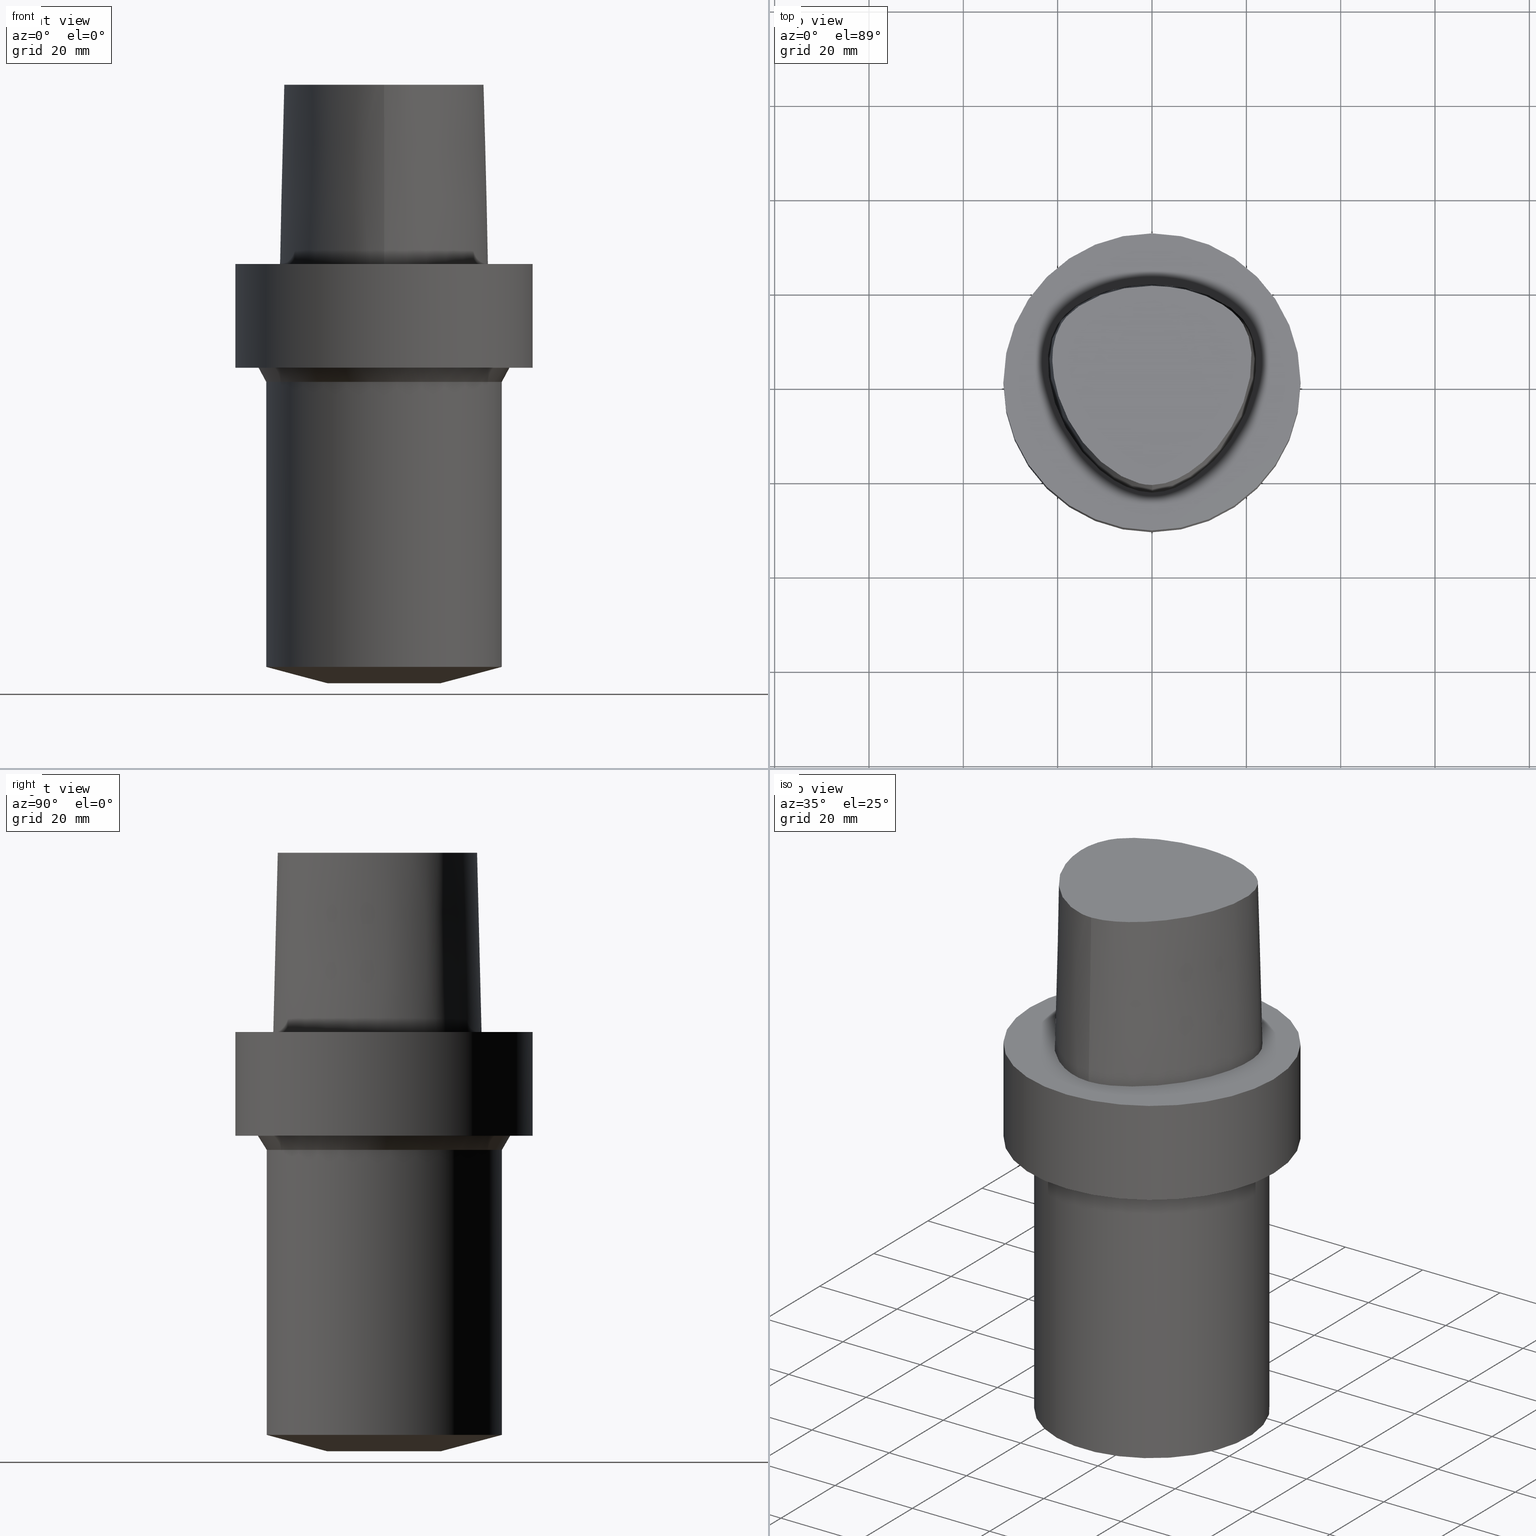
[diagram: canonical four-view strip — front | top / right | iso, engineering-drawing reading convention]
A machine part, canonical four-view strip (front | top / right | iso — engineering-drawing reading convention). The complete STEP part file that produces these views, byte-faithful:
ISO-10303-21;
HEADER;
FILE_DESCRIPTION((''),'1');
FILE_NAME('V:/01_Dxf_Field-HP\X2\FF71FF6FFF8CFF9F5916\X0\2013/BIGKAISER\X2\FF76FF80FF9BFF78FF9E63B28F095206\X0\_BKUS_201803/C6-BSL/C6-BSL.750-3.5.stp','2018-03-14T07:36:31',(''),(''),'Spatial Interop R21 SP3','Kubotek KeyCreator 2011 V10.0.2 (22737)',' ');
FILE_SCHEMA(('automotive_design'));
ENDSEC;
DATA;
#1=MECHANICAL_DESIGN_GEOMETRIC_PRESENTATION_REPRESENTATION(' ',(#10,#11,#12,#13,#14,#15,#16,#17,#18,#19,#20,#21,#22,#23,#24,#25,#26,#27,#28,#29,#30,#31,#32,#33,#34,#35),#6);
#2=PRODUCT_DEFINITION_CONTEXT('',#36,'design');
#3=APPLICATION_PROTOCOL_DEFINITION('INTERNATIONAL STANDARD','automotive_design',1994,#36);
#4=PRODUCT_CATEGORY_RELATIONSHIP('NONE','NONE',#37,#38);
#5=SHAPE_DEFINITION_REPRESENTATION(#39,#40);
#6= (GEOMETRIC_REPRESENTATION_CONTEXT(3)GLOBAL_UNCERTAINTY_ASSIGNED_CONTEXT((#43))GLOBAL_UNIT_ASSIGNED_CONTEXT((#45,#46,#47))REPRESENTATION_CONTEXT('NONE','WORKSPACE'));
#10=STYLED_ITEM('',(#49,#50),#51);
#11=STYLED_ITEM('',(#52),#53);
#12=STYLED_ITEM('',(#54,#55),#56);
#13=STYLED_ITEM('',(#57),#58);
#14=STYLED_ITEM('',(#59),#60);
#15=STYLED_ITEM('',(#61,#62),#63);
#16=STYLED_ITEM('',(#64),#65);
#17=STYLED_ITEM('',(#66,#67),#68);
#18=STYLED_ITEM('',(#69),#70);
#19=STYLED_ITEM('',(#71),#72);
#20=STYLED_ITEM('',(#73,#74),#75);
#21=STYLED_ITEM('',(#76),#77);
#22=STYLED_ITEM('',(#78,#79),#80);
#23=STYLED_ITEM('',(#81,#82),#83);
#24=STYLED_ITEM('',(#84),#85);
#25=STYLED_ITEM('',(#86),#87);
#26=STYLED_ITEM('',(#88,#89),#90);
#27=STYLED_ITEM('',(#91,#92),#93);
#28=STYLED_ITEM('',(#94),#95);
#29=STYLED_ITEM('',(#96),#97);
#30=STYLED_ITEM('',(#98),#99);
#31=STYLED_ITEM('',(#100,#101),#102);
#32=STYLED_ITEM('',(#103,#104),#105);
#33=STYLED_ITEM('',(#106),#107);
#34=STYLED_ITEM('',(#108),#109);
#35=STYLED_ITEM('',(#110,#111),#112);
#36=APPLICATION_CONTEXT(' ');
#37=PRODUCT_CATEGORY('part','NONE');
#38=PRODUCT_RELATED_PRODUCT_CATEGORY('detail',' ',(#113));
#39=PRODUCT_DEFINITION_SHAPE('NONE','NONE',#114);
#40=ADVANCED_BREP_SHAPE_REPRESENTATION('Unnamed[1]',(#102,#115),#6);
#43=UNCERTAINTY_MEASURE_WITH_UNIT(LENGTH_MEASURE(1.0E-006),#45,'','');
#45= (CONVERSION_BASED_UNIT('MILLIMETRE',#118)LENGTH_UNIT()NAMED_UNIT(#121));
#46= (NAMED_UNIT(#123)PLANE_ANGLE_UNIT()SI_UNIT($,.RADIAN.));
#47= (NAMED_UNIT(#123)SOLID_ANGLE_UNIT()SI_UNIT($,.STERADIAN.));
#49=PRESENTATION_STYLE_ASSIGNMENT((#129));
#50=PRESENTATION_STYLE_ASSIGNMENT((#130));
#51=ADVANCED_FACE('Unnamed[1]',(#131,#132),#133,.T.);
#52=PRESENTATION_STYLE_ASSIGNMENT((#134));
#53=EDGE_CURVE('Unnamed[1]',#135,#136,#137,.T.);
#54=PRESENTATION_STYLE_ASSIGNMENT((#138));
#55=PRESENTATION_STYLE_ASSIGNMENT((#139));
#56=ADVANCED_FACE('Unnamed[1]',(#140),#141,.T.);
#57=PRESENTATION_STYLE_ASSIGNMENT((#142));
#58=EDGE_CURVE('Unnamed[1]',#143,#136,#144,.T.);
#59=PRESENTATION_STYLE_ASSIGNMENT((#145));
#60=EDGE_CURVE('Unnamed[1]',#146,#146,#147,.T.);
#61=PRESENTATION_STYLE_ASSIGNMENT((#148));
#62=PRESENTATION_STYLE_ASSIGNMENT((#149));
#63=ADVANCED_FACE('Unnamed[1]',(#150,#151),#152,.T.);
#64=PRESENTATION_STYLE_ASSIGNMENT((#153));
#65=EDGE_CURVE('Unnamed[1]',#154,#154,#155,.T.);
#66=PRESENTATION_STYLE_ASSIGNMENT((#156));
#67=PRESENTATION_STYLE_ASSIGNMENT((#157));
#68=ADVANCED_FACE('Unnamed[1]',(#158,#159),#160,.T.);
#69=PRESENTATION_STYLE_ASSIGNMENT((#161));
#70=EDGE_CURVE('Unnamed[1]',#162,#135,#163,.T.);
#71=PRESENTATION_STYLE_ASSIGNMENT((#164));
#72=EDGE_CURVE('Unnamed[1]',#165,#143,#166,.T.);
#73=PRESENTATION_STYLE_ASSIGNMENT((#167));
#74=PRESENTATION_STYLE_ASSIGNMENT((#168));
#75=ADVANCED_FACE('Unnamed[1]',(#169),#170,.T.);
#76=PRESENTATION_STYLE_ASSIGNMENT((#171));
#77=EDGE_CURVE('Unnamed[1]',#172,#172,#173,.T.);
#78=PRESENTATION_STYLE_ASSIGNMENT((#174));
#79=PRESENTATION_STYLE_ASSIGNMENT((#175));
#80=ADVANCED_FACE('Unnamed[1]',(#176),#177,.T.);
#81=PRESENTATION_STYLE_ASSIGNMENT((#178));
#82=PRESENTATION_STYLE_ASSIGNMENT((#179));
#83=ADVANCED_FACE('Unnamed[1]',(#180,#181),#182,.T.);
#84=PRESENTATION_STYLE_ASSIGNMENT((#183));
#85=EDGE_CURVE('Unnamed[1]',#165,#135,#184,.T.);
#86=PRESENTATION_STYLE_ASSIGNMENT((#185));
#87=EDGE_CURVE('Unnamed[1]',#186,#186,#187,.T.);
#88=PRESENTATION_STYLE_ASSIGNMENT((#188));
#89=PRESENTATION_STYLE_ASSIGNMENT((#189));
#90=ADVANCED_FACE('Unnamed[1]',(#190,#191),#192,.T.);
#91=PRESENTATION_STYLE_ASSIGNMENT((#193));
#92=PRESENTATION_STYLE_ASSIGNMENT((#194));
#93=ADVANCED_FACE('Unnamed[1]',(#195),#196,.T.);
#94=PRESENTATION_STYLE_ASSIGNMENT((#197));
#95=EDGE_CURVE('Unnamed[1]',#143,#162,#198,.T.);
#96=PRESENTATION_STYLE_ASSIGNMENT((#199));
#97=EDGE_CURVE('Unnamed[1]',#200,#200,#201,.T.);
#98=PRESENTATION_STYLE_ASSIGNMENT((#202));
#99=EDGE_CURVE('Unnamed[1]',#143,#165,#203,.T.);
#100=PRESENTATION_STYLE_ASSIGNMENT((#204));
#101=PRESENTATION_STYLE_ASSIGNMENT((#205));
#102=MANIFOLD_SOLID_BREP('Unnamed[1]',#206);
#103=PRESENTATION_STYLE_ASSIGNMENT((#207));
#104=PRESENTATION_STYLE_ASSIGNMENT((#208));
#105=ADVANCED_FACE('Unnamed[1]',(#209,#210),#211,.T.);
#106=PRESENTATION_STYLE_ASSIGNMENT((#212));
#107=EDGE_CURVE('Unnamed[1]',#213,#213,#214,.T.);
#108=PRESENTATION_STYLE_ASSIGNMENT((#215));
#109=EDGE_CURVE('Unnamed[1]',#136,#162,#216,.T.);
#110=PRESENTATION_STYLE_ASSIGNMENT((#217));
#111=PRESENTATION_STYLE_ASSIGNMENT((#218));
#112=ADVANCED_FACE('Unnamed[1]',(#219),#220,.T.);
#113=PRODUCT('Unnamed[1]','Unnamed[1]','PART-Unnamed[1]-DESC',(#221));
#114=PRODUCT_DEFINITION('NONE','NONE',#222,#2);
#115=AXIS2_PLACEMENT_3D('',#223,#224,#225);
#118=LENGTH_MEASURE_WITH_UNIT(LENGTH_MEASURE(1.0),#226);
#121=DIMENSIONAL_EXPONENTS(1.0,0.0,0.0,0.0,0.0,0.0,0.0);
#123=DIMENSIONAL_EXPONENTS(0.0,0.0,0.0,0.0,0.0,0.0,0.0);
#129=SURFACE_STYLE_USAGE(.BOTH.,#227);
#130=CURVE_STYLE('',#228,POSITIVE_LENGTH_MEASURE(1000.0),#229);
#131=FACE_BOUND('',#230,.T.);
#132=FACE_BOUND('',#231,.T.);
#133=CONICAL_SURFACE('',#232,18.5000000000905,1.30899693898932);
#134=CURVE_STYLE('',#233,POSITIVE_LENGTH_MEASURE(1000.0),#234);
#135=VERTEX_POINT('',#235);
#136=VERTEX_POINT('',#236);
#137=B_SPLINE_CURVE_WITH_KNOTS('',3,(#237,#238,#239,#240,#241,#242,#243,#244,#245,#246,#247,#248,#249,#250,#251,#252,#253,#254),.UNSPECIFIED.,.F.,.F.,(4,1,1,1,1,1,1,1,1,2,1,1,1,1,4),(-6.6151339308743,-6.20168806019465,-5.78824218951501,-5.37479631883537,-4.96135044815572,-4.13445870679644,-3.30756696543715,-2.89412109475751,-2.48067522407786,-2.06722935339822,-1.65378348271857,-1.24033761203893,-0.826891741359287,-0.413445870679644,0.0),.UNSPECIFIED.);
#138=SURFACE_STYLE_USAGE(.BOTH.,#255);
#139=CURVE_STYLE('',#256,POSITIVE_LENGTH_MEASURE(1000.0),#257);
#140=FACE_OUTER_BOUND('',#258,.T.);
#141=B_SPLINE_SURFACE_WITH_KNOTS('',3,3,((#259,#260,#261,#262),(#263,#264,#265,#266),(#267,#268,#269,#270),(#271,#272,#273,#274),(#275,#276,#277,#278),(#279,#280,#281,#282),(#283,#284,#285,#286),(#287,#288,#289,#290),(#291,#292,#293,#294),(#295,#296,#297,#298),(#299,#300,#301,#302),(#303,#304,#305,#306),(#307,#308,#309,#310),(#311,#312,#313,#314),(#315,#316,#317,#318),(#319,#320,#321,#322),(#323,#324,#325,#326),(#327,#328,#329,#330)),.UNSPECIFIED.,.F.,.F.,.F.,(4,1,1,1,1,1,1,1,1,2,1,1,1,1,4),(4,4),(-6.6151339308743,-6.20168806019465,-5.78824218951501,-5.37479631883537,-4.96135044815572,-4.13445870679644,-3.30756696543715,-2.89412109475751,-2.48067522407786,-2.06722935339822,-1.65378348271857,-1.24033761203893,-0.826891741359287,-0.413445870679644,0.0),(-3.8,0.0),.UNSPECIFIED.);
#142=CURVE_STYLE('',#331,POSITIVE_LENGTH_MEASURE(1000.0),#332);
#143=VERTEX_POINT('',#333);
#144=LINE('',#334,#335);
#145=CURVE_STYLE('',#336,POSITIVE_LENGTH_MEASURE(1000.0),#337);
#146=VERTEX_POINT('',#338);
#147=CIRCLE('',#339,24.9999999998985);
#148=SURFACE_STYLE_USAGE(.BOTH.,#340);
#149=CURVE_STYLE('',#341,POSITIVE_LENGTH_MEASURE(1000.0),#342);
#150=FACE_BOUND('',#343,.T.);
#151=FACE_OUTER_BOUND('',#344,.T.);
#152=PLANE('',#345);
#153=CURVE_STYLE('',#346,POSITIVE_LENGTH_MEASURE(1000.0),#347);
#154=VERTEX_POINT('',#348);
#155=CIRCLE('',#349,11.9999999999596);
#156=SURFACE_STYLE_USAGE(.BOTH.,#350);
#157=CURVE_STYLE('',#351,POSITIVE_LENGTH_MEASURE(1000.0),#352);
#158=FACE_BOUND('',#353,.T.);
#159=FACE_BOUND('',#354,.T.);
#160=CONICAL_SURFACE('',#355,25.8660254036023,0.523598775591873);
#161=CURVE_STYLE('',#356,POSITIVE_LENGTH_MEASURE(1000.0),#357);
#162=VERTEX_POINT('',#358);
#163=B_SPLINE_CURVE_WITH_KNOTS('',3,(#359,#360,#361,#362,#363,#364,#365,#366,#367,#368,#369,#370,#371,#372,#373,#374,#375),.UNSPECIFIED.,.F.,.F.,(4,1,1,1,1,1,1,1,1,1,1,1,1,1,4),(-13.2302678617486,-12.816821991069,-12.4033761203893,-11.9899302497097,-11.57648437903,-11.1630385083504,-10.9563155730106,-10.7495926376707,-10.3361467669911,-9.92270089631145,-9.09580915495216,-8.26891741359287,-7.44202567223358,-7.02857980155394,-6.6151339308743),.UNSPECIFIED.);
#164=CURVE_STYLE('',#376,POSITIVE_LENGTH_MEASURE(1000.0),#377);
#165=VERTEX_POINT('',#378);
#166=B_SPLINE_CURVE_WITH_KNOTS('',3,(#379,#380,#381,#382,#383,#384,#385,#386,#387,#388,#389,#390,#391,#392,#393,#394),.UNSPECIFIED.,.F.,.F.,(4,1,1,1,1,1,1,1,1,1,1,1,1,4),(6.61513393087476,6.99917207152274,7.48193246986995,7.96289324787093,8.45540287038584,9.10291653679981,9.67129810936083,10.1618749681153,10.6358867802489,11.1080734988593,11.6043706019633,12.09451993853,12.6985979284494,13.2302678617486),.UNSPECIFIED.);
#167=SURFACE_STYLE_USAGE(.BOTH.,#395);
#168=CURVE_STYLE('',#396,POSITIVE_LENGTH_MEASURE(1000.0),#397);
#169=FACE_OUTER_BOUND('',#398,.T.);
#170=PLANE('',#399);
#171=CURVE_STYLE('',#400,POSITIVE_LENGTH_MEASURE(1000.0),#401);
#172=VERTEX_POINT('',#402);
#173=CIRCLE('',#403,26.7320508073061);
#174=SURFACE_STYLE_USAGE(.BOTH.,#404);
#175=CURVE_STYLE('',#405,POSITIVE_LENGTH_MEASURE(1000.0),#406);
#176=FACE_OUTER_BOUND('',#407,.T.);
#177=B_SPLINE_SURFACE_WITH_KNOTS('',3,3,((#408,#409,#410,#411),(#412,#413,#414,#415),(#416,#417,#418,#419),(#420,#421,#422,#423),(#424,#425,#426,#427),(#428,#429,#430,#431),(#432,#433,#434,#435),(#436,#437,#438,#439),(#440,#441,#442,#443),(#444,#445,#446,#447),(#448,#449,#450,#451),(#452,#453,#454,#455),(#456,#457,#458,#459),(#460,#461,#462,#463),(#464,#465,#466,#467),(#468,#469,#470,#471),(#472,#473,#474,#475)),.UNSPECIFIED.,.F.,.F.,.F.,(4,1,1,1,1,1,1,1,1,1,1,1,1,1,4),(4,4),(-13.2302678617486,-12.816821991069,-12.4033761203893,-11.9899302497097,-11.57648437903,-11.1630385083504,-10.9563155730106,-10.7495926376707,-10.3361467669911,-9.92270089631145,-9.09580915495216,-8.26891741359287,-7.44202567223358,-7.02857980155394,-6.6151339308743),(-3.8,0.0),.UNSPECIFIED.);
#178=SURFACE_STYLE_USAGE(.BOTH.,#476);
#179=CURVE_STYLE('',#477,POSITIVE_LENGTH_MEASURE(1000.0),#478);
#180=FACE_BOUND('',#479,.T.);
#181=FACE_BOUND('',#480,.T.);
#182=CYLINDRICAL_SURFACE('',#481,25.00000000006);
#183=CURVE_STYLE('',#482,POSITIVE_LENGTH_MEASURE(1000.0),#483);
#184=LINE('',#484,#485);
#185=CURVE_STYLE('',#486,POSITIVE_LENGTH_MEASURE(1000.0),#487);
#186=VERTEX_POINT('',#488);
#187=CIRCLE('',#489,25.0000000002215);
#188=SURFACE_STYLE_USAGE(.BOTH.,#490);
#189=CURVE_STYLE('',#491,POSITIVE_LENGTH_MEASURE(1000.0),#492);
#190=FACE_BOUND('',#493,.T.);
#191=FACE_OUTER_BOUND('',#494,.T.);
#192=PLANE('',#495);
#193=SURFACE_STYLE_USAGE(.BOTH.,#496);
#194=CURVE_STYLE('',#497,POSITIVE_LENGTH_MEASURE(1000.0),#498);
#195=FACE_OUTER_BOUND('',#499,.T.);
#196=CONICAL_SURFACE('',#500,1.0,0.0249931148600041);
#197=CURVE_STYLE('',#501,POSITIVE_LENGTH_MEASURE(1000.0),#502);
#198=LINE('',#503,#504);
#199=CURVE_STYLE('',#505,POSITIVE_LENGTH_MEASURE(1000.0),#506);
#200=VERTEX_POINT('',#507);
#201=CIRCLE('',#508,31.5);
#202=CURVE_STYLE('',#509,POSITIVE_LENGTH_MEASURE(1000.0),#510);
#203=B_SPLINE_CURVE_WITH_KNOTS('',3,(#511,#512,#513,#514,#515,#516,#517,#518,#519,#520,#521,#522,#523,#524,#525,#526),.UNSPECIFIED.,.F.,.F.,(4,1,1,1,1,1,1,1,1,1,1,1,1,4),(0.0,0.447924670568964,0.9388024242536,1.50591409090711,2.07314340012323,2.72424957442464,3.2253501842849,3.80982102049476,4.34867996267067,4.85900173381144,5.37972031856977,6.03459825488646,6.61113557741484,6.61513393087395),.UNSPECIFIED.);
#204=SURFACE_STYLE_USAGE(.BOTH.,#527);
#205=CURVE_STYLE('',#528,POSITIVE_LENGTH_MEASURE(1000.0),#529);
#206=CLOSED_SHELL('',(#80,#56,#93,#112,#90,#105,#63,#68,#83,#51,#75));
#207=SURFACE_STYLE_USAGE(.BOTH.,#530);
#208=CURVE_STYLE('',#531,POSITIVE_LENGTH_MEASURE(1000.0),#532);
#209=FACE_BOUND('',#533,.T.);
#210=FACE_BOUND('',#534,.T.);
#211=CYLINDRICAL_SURFACE('',#535,31.5);
#212=CURVE_STYLE('',#536,POSITIVE_LENGTH_MEASURE(1000.0),#537);
#213=VERTEX_POINT('',#538);
#214=CIRCLE('',#539,31.5);
#215=CURVE_STYLE('',#540,POSITIVE_LENGTH_MEASURE(1000.0),#541);
#216=CIRCLE('',#542,0.949936168436318);
#217=SURFACE_STYLE_USAGE(.BOTH.,#543);
#218=CURVE_STYLE('',#544,POSITIVE_LENGTH_MEASURE(1000.0),#545);
#219=FACE_OUTER_BOUND('',#546,.T.);
#220=PLANE('',#547);
#221=PRODUCT_CONTEXT('',#36,'mechanical');
#222=PRODUCT_DEFINITION_FORMATION_WITH_SPECIFIED_SOURCE(' ','NONE',#113,.NOT_KNOWN.);
#223=CARTESIAN_POINT('',(0.0,0.0,0.0));
#224=DIRECTION('',(0.0,0.0,1.0));
#225=DIRECTION('',(1.0,0.0,0.0));
#226= (NAMED_UNIT(#121)LENGTH_UNIT()SI_UNIT(.MILLI.,.METRE.));
#227=SURFACE_SIDE_STYLE('',(#549));
#228=DRAUGHTING_PRE_DEFINED_CURVE_FONT('continuous');
#229=COLOUR_RGB('',0.0,1.0,0.0);
#230=EDGE_LOOP('',(#550));
#231=EDGE_LOOP('',(#551));
#232=AXIS2_PLACEMENT_3D('',#552,#553,#554);
#233=DRAUGHTING_PRE_DEFINED_CURVE_FONT('continuous');
#234=COLOUR_RGB('',0.0,1.0,0.0);
#235=CARTESIAN_POINT('',(0.04359356758149,-23.4691235068931,7.78075697532443E-032));
#236=CARTESIAN_POINT('',(-0.045171994691285,20.6766009553285,1.6755590516169E-031));
#237=CARTESIAN_POINT('',(0.04359356758149,-23.4691235068931,7.78075697532443E-032));
#238=CARTESIAN_POINT('',(-1.4714994713963,-23.4767895315797,2.46519032881566E-032));
#239=CARTESIAN_POINT('',(-4.43923476371401,-22.821149804767,-4.93038065763132E-032));
#240=CARTESIAN_POINT('',(-8.35043230079961,-20.8000751253325,-9.86076131526265E-032));
#241=CARTESIAN_POINT('',(-11.744900222602,-18.1556117874078,-1.97215226305253E-031));
#242=CARTESIAN_POINT('',(-15.6989602501314,-14.0406306929147,-1.97215226305253E-031));
#243=CARTESIAN_POINT('',(-19.5352875070682,-8.00624990770787,1.97215226305253E-031));
#244=CARTESIAN_POINT('',(-21.7205626190491,-1.16081708945282,0.0));
#245=CARTESIAN_POINT('',(-22.2486616783342,4.54965558738736,0.0));
#246=CARTESIAN_POINT('',(-21.6646421256468,9.00229539124618,0.0));
#247=CARTESIAN_POINT('',(-20.3945635471922,11.7780544971003,0.0));
#248=CARTESIAN_POINT('',(-18.5925528034471,14.1980602922581,0.0));
#249=CARTESIAN_POINT('',(-16.3226584122258,16.1777748720707,0.0));
#250=CARTESIAN_POINT('',(-12.5076407874579,18.2524201541303,9.86076131526265E-032));
#251=CARTESIAN_POINT('',(-8.46776192107786,19.679114377952,9.86076131526265E-032));
#252=CARTESIAN_POINT('',(-4.23043497193604,20.487781597334,1.97215226305253E-031));
#253=CARTESIAN_POINT('',(-1.42313094248379,20.6127745766442,1.10933564796705E-031));
#254=CARTESIAN_POINT('',(-0.045171994691285,20.6766009553285,1.6755590516169E-031));
#255=SURFACE_SIDE_STYLE('',(#555));
#256=DRAUGHTING_PRE_DEFINED_CURVE_FONT('continuous');
#257=COLOUR_RGB('',0.0,1.0,0.0);
#258=EDGE_LOOP('',(#556,#557,#558,#559));
#259=CARTESIAN_POINT('',(0.038736923393866,-22.5191997536361,38.0));
#260=CARTESIAN_POINT('',(0.04035580478973,-22.8358410047159,25.3333333333066));
#261=CARTESIAN_POINT('',(0.041974686185626,-23.1524822558133,12.6666666666934));
#262=CARTESIAN_POINT('',(0.04359356758149,-23.4691235068931,7.78075697532443E-032));
#263=CARTESIAN_POINT('',(-1.33786123484754,-22.5261650259856,38.0));
#264=CARTESIAN_POINT('',(-1.38240731367927,-22.8430399310626,25.3333333333066));
#265=CARTESIAN_POINT('',(-1.42695339249092,-23.1599147815484,12.6666666666934));
#266=CARTESIAN_POINT('',(-1.4714994713963,-23.4767895315797,2.46519032881566E-032));
#267=CARTESIAN_POINT('',(-4.08909358431842,-21.9268839879558,38.0));
#268=CARTESIAN_POINT('',(-4.20580731135515,-22.2249725500078,25.3333333333066));
#269=CARTESIAN_POINT('',(-4.32252104640446,-22.5230611651922,12.6666666666934));
#270=CARTESIAN_POINT('',(-4.43923476371401,-22.821149804767,-4.93038065763132E-032));
#271=CARTESIAN_POINT('',(-7.8333083619947,-19.9973514861616,38.0));
#272=CARTESIAN_POINT('',(-8.00568301809614,-20.2649260859405,25.3333333333066));
#273=CARTESIAN_POINT('',(-8.1780576640789,-20.532500564315,12.6666666666934));
#274=CARTESIAN_POINT('',(-8.35043230079961,-20.8000751253325,-9.86076131526265E-032));
#275=CARTESIAN_POINT('',(-11.1035071147626,-17.450554957873,38.0));
#276=CARTESIAN_POINT('',(-11.3173048160562,-17.6855739222454,25.3333333333066));
#277=CARTESIAN_POINT('',(-11.5311025116181,-17.9205928617968,12.6666666666934));
#278=CARTESIAN_POINT('',(-11.744900222602,-18.1556117874078,-1.97215226305253E-031));
#279=CARTESIAN_POINT('',(-14.9379535189057,-13.461132049697,38.0));
#280=CARTESIAN_POINT('',(-15.191622410671,-13.6542981711372,25.3333333333066));
#281=CARTESIAN_POINT('',(-15.4452913389853,-13.8474645327131,12.6666666666934));
#282=CARTESIAN_POINT('',(-15.6989602501314,-14.0406306929147,-1.97215226305253E-031));
#283=CARTESIAN_POINT('',(-18.6681263017223,-7.59391757463204,38.0));
#284=CARTESIAN_POINT('',(-18.9571800800711,-7.73136168081928,25.3333333333066));
#285=CARTESIAN_POINT('',(-19.2462337287194,-7.86880572399774,12.6666666666934));
#286=CARTESIAN_POINT('',(-19.5352875070682,-8.00624990770787,1.97215226305253E-031));
#287=CARTESIAN_POINT('',(-20.7857899858339,-0.952862819790525,38.0));
#288=CARTESIAN_POINT('',(-21.0973808305434,-1.02218087467418,25.3333333333066));
#289=CARTESIAN_POINT('',(-21.408971677436,-1.09149899580772,12.6666666666934));
#290=CARTESIAN_POINT('',(-21.7205626190491,-1.16081708945282,0.0));
#291=CARTESIAN_POINT('',(-21.2911760556836,4.5469215763113,38.0));
#292=CARTESIAN_POINT('',(-21.610337904926,4.54783292082248,25.3333333333066));
#293=CARTESIAN_POINT('',(-21.9294998290918,4.54874426225691,12.6666666666934));
#294=CARTESIAN_POINT('',(-22.2486616783342,4.54965558738736,0.0));
#295=CARTESIAN_POINT('',(-20.7345309521958,8.74909381391006,38.0));
#296=CARTESIAN_POINT('',(-21.0445680426217,8.83349432450556,25.3333333333066));
#297=CARTESIAN_POINT('',(-21.3546050933631,8.91789488065068,12.6666666666934));
#298=CARTESIAN_POINT('',(-21.6646421256468,9.00229539124618,0.0));
#299=CARTESIAN_POINT('',(-19.5531512296439,11.3174844040833,38.0));
#300=CARTESIAN_POINT('',(-19.8336219699984,11.4710077674213,25.3333333333066));
#301=CARTESIAN_POINT('',(-20.1140927680763,11.6245311337623,12.6666666666934));
#302=CARTESIAN_POINT('',(-20.3945635471922,11.7780544971003,0.0));
#303=CARTESIAN_POINT('',(-17.9100913688793,13.524027510437,38.0));
#304=CARTESIAN_POINT('',(-18.1375785458768,13.7487051053655,25.3333333333066));
#305=CARTESIAN_POINT('',(-18.365065665211,13.9733826973296,12.6666666666934));
#306=CARTESIAN_POINT('',(-18.5925528034471,14.1980602922581,0.0));
#307=CARTESIAN_POINT('',(-15.7996349656398,15.3762170634413,38.0));
#308=CARTESIAN_POINT('',(-15.9739761051783,15.6434029846179,25.3333333333066));
#309=CARTESIAN_POINT('',(-16.1483172726872,15.9105889315134,12.6666666666934));
#310=CARTESIAN_POINT('',(-16.3226584122258,16.1777748720707,0.0));
#311=CARTESIAN_POINT('',(-12.1175640002064,17.3825162484012,38.0));
#312=CARTESIAN_POINT('',(-12.2475895903055,17.6724842099619,25.3333333333066));
#313=CARTESIAN_POINT('',(-12.3776152070492,17.9624521925696,12.6666666666934));
#314=CARTESIAN_POINT('',(-12.5076407874579,18.2524201541303,9.86076131526265E-032));
#315=CARTESIAN_POINT('',(-8.21761151654222,18.7588585989994,38.0));
#316=CARTESIAN_POINT('',(-8.30099497910627,19.0656105427881,25.3333333333066));
#317=CARTESIAN_POINT('',(-8.38437843913309,19.3723624535439,12.6666666666934));
#318=CARTESIAN_POINT('',(-8.46776192107786,19.679114377952,9.86076131526265E-032));
#319=CARTESIAN_POINT('',(-4.13466093881225,19.5396850837055,38.0));
#320=CARTESIAN_POINT('',(-4.16658562115465,19.8557172636973,25.3333333333066));
#321=CARTESIAN_POINT('',(-4.19851029939059,20.1717494367229,12.6666666666934));
#322=CARTESIAN_POINT('',(-4.23043497193604,20.487781597334,1.97215226305253E-031));
#323=CARTESIAN_POINT('',(-1.37917220403684,19.6638560588908,38.0));
#324=CARTESIAN_POINT('',(-1.39382511685176,19.98016223565,25.3333333333066));
#325=CARTESIAN_POINT('',(-1.40847802945569,20.296468399885,12.6666666666934));
#326=CARTESIAN_POINT('',(-1.42313094248379,20.6127745766442,1.10933564796705E-031));
#327=CARTESIAN_POINT('',(-0.001218547003662,19.7276821925089,38.0));
#328=CARTESIAN_POINT('',(-0.015869696232855,20.043988446791,25.3333333333066));
#329=CARTESIAN_POINT('',(-0.030520845462092,20.3602947010464,12.6666666666934));
#330=CARTESIAN_POINT('',(-0.045171994691285,20.6766009553285,1.6755590516169E-031));
#331=DRAUGHTING_PRE_DEFINED_CURVE_FONT('continuous');
#332=COLOUR_RGB('',0.0,1.0,0.0);
#333=CARTESIAN_POINT('',(-0.001218547003662,19.7276821925089,38.0));
#334=CARTESIAN_POINT('',(-0.001218547003662,19.7276821925089,38.0));
#335=VECTOR('',#560,38.0118715498723);
#336=DRAUGHTING_PRE_DEFINED_CURVE_FONT('continuous');
#337=COLOUR_RGB('',0.0,1.0,0.0);
#338=CARTESIAN_POINT('',(1.53080849891982E-015,24.9999999998985,-24.9999999997653));
#339=AXIS2_PLACEMENT_3D('',#561,#562,#563);
#340=SURFACE_SIDE_STYLE('',(#564));
#341=DRAUGHTING_PRE_DEFINED_CURVE_FONT('continuous');
#342=COLOUR_RGB('',0.0,1.0,0.0);
#343=EDGE_LOOP('',(#565));
#344=EDGE_LOOP('',(#566));
#345=AXIS2_PLACEMENT_3D('',#567,#568,#569);
#346=DRAUGHTING_PRE_DEFINED_CURVE_FONT('continuous');
#347=COLOUR_RGB('',0.0,1.0,0.0);
#348=CARTESIAN_POINT('',(5.44355502221979E-015,11.9999999999596,-88.9000000001602));
#349=AXIS2_PLACEMENT_3D('',#570,#571,#572);
#350=SURFACE_SIDE_STYLE('',(#573));
#351=DRAUGHTING_PRE_DEFINED_CURVE_FONT('continuous');
#352=COLOUR_RGB('',0.0,1.0,0.0);
#353=EDGE_LOOP('',(#574));
#354=EDGE_LOOP('',(#575));
#355=AXIS2_PLACEMENT_3D('',#576,#577,#578);
#356=DRAUGHTING_PRE_DEFINED_CURVE_FONT('continuous');
#357=COLOUR_RGB('',0.0,1.0,0.0);
#358=CARTESIAN_POINT('',(0.044682985379347,20.6765087343109,1.61778115328528E-031));
#359=CARTESIAN_POINT('',(0.044682985379347,20.6765087343109,1.61778115328528E-031));
#360=CARTESIAN_POINT('',(1.42379272427753,20.6097915814392,8.62816615085482E-032));
#361=CARTESIAN_POINT('',(4.2230955003445,20.4837538303966,1.4791141972894E-031));
#362=CARTESIAN_POINT('',(8.47220762821777,19.6890432607088,9.86076131526265E-032));
#363=CARTESIAN_POINT('',(12.5141247708253,18.2434968480404,0.0));
#364=CARTESIAN_POINT('',(16.3038624872874,16.1734192182143,1.97215226305253E-031));
#365=CARTESIAN_POINT('',(19.1446913988473,13.7036723639434,-1.97215226305253E-031));
#366=CARTESIAN_POINT('',(20.7319894342149,11.1014620996188,0.0));
#367=CARTESIAN_POINT('',(21.7831756505763,8.28099229708081,-1.97215226305253E-031));
#368=CARTESIAN_POINT('',(22.2258240701438,4.60865440596506,0.0));
#369=CARTESIAN_POINT('',(21.7436130080666,-1.11326526354485,0.0));
#370=CARTESIAN_POINT('',(19.5519487660502,-7.95432366164584,0.0));
#371=CARTESIAN_POINT('',(14.9574167123838,-15.2089785567293,0.0));
#372=CARTESIAN_POINT('',(9.66840283021945,-20.0827414369705,-9.86076131526265E-032));
#373=CARTESIAN_POINT('',(4.51628650521788,-22.7946374572188,-9.86076131526265E-032));
#374=CARTESIAN_POINT('',(1.55867251738073,-23.4612972770043,-1.23259516440783E-032));
#375=CARTESIAN_POINT('',(0.04359356758149,-23.4691235068931,7.78075697532443E-032));
#376=DRAUGHTING_PRE_DEFINED_CURVE_FONT('continuous');
#377=COLOUR_RGB('',0.0,1.0,0.0);
#378=CARTESIAN_POINT('',(0.038736923393866,-22.5191997536361,38.0));
#379=CARTESIAN_POINT('',(0.038736923394311,-22.519199753636,38.0));
#380=CARTESIAN_POINT('',(1.31742058183662,-22.512662269405,38.0));
#381=CARTESIAN_POINT('',(4.2093773447498,-21.9116226439989,38.0));
#382=CARTESIAN_POINT('',(8.20895504542113,-19.7798683845067,38.0));
#383=CARTESIAN_POINT('',(11.9784633234593,-16.681663904162,38.0));
#384=CARTESIAN_POINT('',(15.5308821579362,-12.5807487594113,38.0));
#385=CARTESIAN_POINT('',(18.4566248438667,-7.64932246015528,38.0));
#386=CARTESIAN_POINT('',(20.4036090752029,-2.27012499825289,38.0));
#387=CARTESIAN_POINT('',(21.2357187429189,2.79891401173156,38.0));
#388=CARTESIAN_POINT('',(21.0811206267748,7.62543090736657,38.0));
#389=CARTESIAN_POINT('',(19.3383577336563,12.2772250726194,38.0));
#390=CARTESIAN_POINT('',(15.5796322014404,15.5799672120682,38.0));
#391=CARTESIAN_POINT('',(10.8392956074438,17.9834601687347,38.0));
#392=CARTESIAN_POINT('',(5.56068045850571,19.4586143858472,38.0));
#393=CARTESIAN_POINT('',(1.77223893711014,19.6418877095654,38.0));
#394=CARTESIAN_POINT('',(-0.001218367817519,19.7276822012873,38.0));
#395=SURFACE_SIDE_STYLE('',(#579));
#396=DRAUGHTING_PRE_DEFINED_CURVE_FONT('continuous');
#397=COLOUR_RGB('',0.0,1.0,0.0);
#398=EDGE_LOOP('',(#580));
#399=AXIS2_PLACEMENT_3D('',#581,#582,#583);
#400=DRAUGHTING_PRE_DEFINED_CURVE_FONT('continuous');
#401=COLOUR_RGB('',0.0,1.0,0.0);
#402=CARTESIAN_POINT('',(1.34711147906209E-015,26.7320508073061,-22.0));
#403=AXIS2_PLACEMENT_3D('',#584,#585,#586);
#404=SURFACE_SIDE_STYLE('',(#587));
#405=DRAUGHTING_PRE_DEFINED_CURVE_FONT('continuous');
#406=COLOUR_RGB('',0.0,1.0,0.0);
#407=EDGE_LOOP('',(#588,#589,#590,#591));
#408=CARTESIAN_POINT('',(-0.001218367817519,19.7276822012873,38.0));
#409=CARTESIAN_POINT('',(0.014082083248157,20.0439577123075,25.3333333333066));
#410=CARTESIAN_POINT('',(0.029382534313671,20.3602332232908,12.6666666666934));
#411=CARTESIAN_POINT('',(0.044682985379347,20.6765087343109,1.61778115328528E-031));
#412=CARTESIAN_POINT('',(1.37788651195108,19.6609652834875,38.0));
#413=CARTESIAN_POINT('',(1.3931885827258,19.9772407169847,25.3333333333066));
#414=CARTESIAN_POINT('',(1.40849065356095,20.2935162254648,12.6666666666934));
#415=CARTESIAN_POINT('',(1.42379272427753,20.6097915814392,8.62816615085482E-032));
#416=CARTESIAN_POINT('',(4.135446440878,19.5347778787784,38.0));
#417=CARTESIAN_POINT('',(4.16466278851883,19.8511031866125,25.3333333333066));
#418=CARTESIAN_POINT('',(4.1938791526746,20.1674284644204,12.6666666666934));
#419=CARTESIAN_POINT('',(4.2230955003445,20.4837538303966,1.4791141972894E-031));
#420=CARTESIAN_POINT('',(8.213607363795,18.7706026638736,38.0));
#421=CARTESIAN_POINT('',(8.29980745008421,19.0767495109635,25.3333333333066));
#422=CARTESIAN_POINT('',(8.38600751285747,19.3828964329996,12.6666666666934));
#423=CARTESIAN_POINT('',(8.47220762821777,19.6890432607088,9.86076131526265E-032));
#424=CARTESIAN_POINT('',(12.1316338645671,17.3698624840857,38.0));
#425=CARTESIAN_POINT('',(12.2591308270381,17.6610739397708,25.3333333333066));
#426=CARTESIAN_POINT('',(12.3866278083543,17.9522853923553,12.6666666666934));
#427=CARTESIAN_POINT('',(12.5141247708253,18.2434968480404,0.0));
#428=CARTESIAN_POINT('',(15.7706546153679,15.3789501349612,38.0));
#429=CARTESIAN_POINT('',(15.9483905900895,15.6437731794811,25.3333333333066));
#430=CARTESIAN_POINT('',(16.1261265513272,15.9085961736944,12.6666666666934));
#431=CARTESIAN_POINT('',(16.3038624872874,16.1734192182143,1.97215226305253E-031));
#432=CARTESIAN_POINT('',(18.4265894256284,13.0570022172893,38.0));
#433=CARTESIAN_POINT('',(18.6659567517146,13.2725589420689,25.3333333333066));
#434=CARTESIAN_POINT('',(18.9053240921419,13.4881156488541,12.6666666666934));
#435=CARTESIAN_POINT('',(19.1446913988473,13.7036723639434,-1.97215226305253E-031));
#436=CARTESIAN_POINT('',(19.8679958653038,10.6923771981998,38.0));
#437=CARTESIAN_POINT('',(20.1559937048299,10.8287388264873,25.3333333333066));
#438=CARTESIAN_POINT('',(20.4439915656177,10.965100461641,12.6666666666934));
#439=CARTESIAN_POINT('',(20.7319894342149,11.1014620996188,0.0));
#440=CARTESIAN_POINT('',(20.8470867582337,8.07149548576131,38.0));
#441=CARTESIAN_POINT('',(21.1591164072431,8.14132775555392,25.3333333333066));
#442=CARTESIAN_POINT('',(21.4711459821861,8.21116003697855,12.6666666666934));
#443=CARTESIAN_POINT('',(21.7831756505763,8.28099229708081,-1.97215226305253E-031));
#444=CARTESIAN_POINT('',(21.2693244256982,4.61157245650171,38.0));
#445=CARTESIAN_POINT('',(21.5881576801997,4.6105997689982,25.3333333333066));
#446=CARTESIAN_POINT('',(21.9069908544037,4.60962709346857,12.6666666666934));
#447=CARTESIAN_POINT('',(22.2258240701438,4.60865440596506,0.0));
#448=CARTESIAN_POINT('',(20.8071610855575,-0.912828649855193,38.0));
#449=CARTESIAN_POINT('',(21.119311671178,-0.979640884839481,25.3333333333066));
#450=CARTESIAN_POINT('',(21.4314624224461,-1.04645306732201,12.6666666666934));
#451=CARTESIAN_POINT('',(21.7436130080666,-1.11326526354485,0.0));
#452=CARTESIAN_POINT('',(18.6841935581315,-7.54428794252837,38.0));
#453=CARTESIAN_POINT('',(18.9734452551861,-7.6809665891091,25.3333333333066));
#454=CARTESIAN_POINT('',(19.2626970689956,-7.81764505382656,12.6666666666934));
#455=CARTESIAN_POINT('',(19.5519487660502,-7.95432366164584,0.0));
#456=CARTESIAN_POINT('',(14.2175552814,-14.5971504342323,38.0));
#457=CARTESIAN_POINT('',(14.4641757465198,-14.8010930946929,25.3333333333066));
#458=CARTESIAN_POINT('',(14.710796247264,-15.0050359737917,12.6666666666934));
#459=CARTESIAN_POINT('',(14.9574167123838,-15.2089785567293,0.0));
#460=CARTESIAN_POINT('',(9.0844808732933,-19.3179298129689,38.0));
#461=CARTESIAN_POINT('',(9.27912152349017,-19.572866915557,25.3333333333066));
#462=CARTESIAN_POINT('',(9.47376218971294,-19.827804295621,12.6666666666934));
#463=CARTESIAN_POINT('',(9.66840283021945,-20.0827414369705,-9.86076131526265E-032));
#464=CARTESIAN_POINT('',(4.17112919194182,-21.8987568152736,38.0));
#465=CARTESIAN_POINT('',(4.28618163483998,-22.1973837173649,25.3333333333066));
#466=CARTESIAN_POINT('',(4.40123406239433,-22.4960105163661,12.6666666666934));
#467=CARTESIAN_POINT('',(4.51628650521788,-22.7946374572188,-9.86076131526265E-032));
#468=CARTESIAN_POINT('',(1.41533654381097,-22.5120888467812,38.0));
#469=CARTESIAN_POINT('',(1.46311520162011,-22.8284916374445,25.3333333333066));
#470=CARTESIAN_POINT('',(1.51089385942236,-23.144894486341,12.6666666666934));
#471=CARTESIAN_POINT('',(1.55867251738073,-23.4612972770043,-1.23259516440783E-032));
#472=CARTESIAN_POINT('',(0.038736923393866,-22.5191997536361,38.0));
#473=CARTESIAN_POINT('',(0.04035580478973,-22.8358410047159,25.3333333333066));
#474=CARTESIAN_POINT('',(0.041974686185626,-23.1524822558133,12.6666666666934));
#475=CARTESIAN_POINT('',(0.04359356758149,-23.4691235068931,7.78075697532443E-032));
#476=SURFACE_SIDE_STYLE('',(#592));
#477=DRAUGHTING_PRE_DEFINED_CURVE_FONT('continuous');
#478=COLOUR_RGB('',0.0,1.0,0.0);
#479=EDGE_LOOP('',(#593));
#480=EDGE_LOOP('',(#594));
#481=AXIS2_PLACEMENT_3D('',#595,#596,#597);
#482=DRAUGHTING_PRE_DEFINED_CURVE_FONT('continuous');
#483=COLOUR_RGB('',0.0,1.0,0.0);
#484=CARTESIAN_POINT('',(0.038736923393866,-22.5191997536361,38.0));
#485=VECTOR('',#598,38.0118715498723);
#486=DRAUGHTING_PRE_DEFINED_CURVE_FONT('continuous');
#487=COLOUR_RGB('',0.0,1.0,0.0);
#488=CARTESIAN_POINT('',(5.23026199366083E-015,25.0000000002215,-85.4166604983959));
#489=AXIS2_PLACEMENT_3D('',#599,#600,#601);
#490=SURFACE_SIDE_STYLE('',(#602));
#491=DRAUGHTING_PRE_DEFINED_CURVE_FONT('continuous');
#492=COLOUR_RGB('',0.0,1.0,0.0);
#493=EDGE_LOOP('',(#603,#604,#605));
#494=EDGE_LOOP('',(#606));
#495=AXIS2_PLACEMENT_3D('',#607,#608,#609);
#496=SURFACE_SIDE_STYLE('',(#610));
#497=DRAUGHTING_PRE_DEFINED_CURVE_FONT('continuous');
#498=COLOUR_RGB('',0.0,1.0,0.0);
#499=EDGE_LOOP('',(#611,#612,#613));
#500=AXIS2_PLACEMENT_3D('',#614,#615,#616);
#501=DRAUGHTING_PRE_DEFINED_CURVE_FONT('continuous');
#502=COLOUR_RGB('',0.0,1.0,0.0);
#503=CARTESIAN_POINT('',(-0.001218547003662,19.7276821925089,38.0));
#504=VECTOR('',#617,38.0118715503078);
#505=DRAUGHTING_PRE_DEFINED_CURVE_FONT('continuous');
#506=COLOUR_RGB('',0.0,1.0,0.0);
#507=CARTESIAN_POINT('',(-3.532718666349E-031,31.5,3.28611573158515E-015));
#508=AXIS2_PLACEMENT_3D('',#618,#619,#620);
#509=DRAUGHTING_PRE_DEFINED_CURVE_FONT('continuous');
#510=COLOUR_RGB('',0.0,1.0,0.0);
#511=CARTESIAN_POINT('',(-0.001218547003662,19.7276821925089,38.0));
#512=CARTESIAN_POINT('',(-1.49408492138443,19.6585333605309,38.0));
#513=CARTESIAN_POINT('',(-4.62297391420352,19.513604770166,38.0));
#514=CARTESIAN_POINT('',(-9.56160616752212,18.4291575730197,38.0));
#515=CARTESIAN_POINT('',(-14.5427684976927,16.2697452580488,38.0));
#516=CARTESIAN_POINT('',(-19.4315563551602,12.5302108980807,38.0));
#517=CARTESIAN_POINT('',(-21.306358833612,6.76352894547076,38.0));
#518=CARTESIAN_POINT('',(-21.0724946936277,0.957075236984038,38.0));
#519=CARTESIAN_POINT('',(-19.7876470880144,-4.34628503581652,38.0));
#520=CARTESIAN_POINT('',(-17.5396999600095,-9.33314444653089,38.0));
#521=CARTESIAN_POINT('',(-14.645447733857,-13.7185760345629,38.0));
#522=CARTESIAN_POINT('',(-10.7996726536643,-17.856257282137,38.0));
#523=CARTESIAN_POINT('',(-6.00479510196376,-21.2687382067675,38.0));
#524=CARTESIAN_POINT('',(-1.90747171908525,-22.5250621415864,38.0));
#525=CARTESIAN_POINT('',(0.025424107066464,-22.5192678176378,38.0));
#526=CARTESIAN_POINT('',(0.038736923394311,-22.519199753636,38.0));
#527=SURFACE_SIDE_STYLE('',(#621));
#528=DRAUGHTING_PRE_DEFINED_CURVE_FONT('continuous');
#529=COLOUR_RGB('',0.0,1.0,0.0);
#530=SURFACE_SIDE_STYLE('',(#622));
#531=DRAUGHTING_PRE_DEFINED_CURVE_FONT('continuous');
#532=COLOUR_RGB('',0.0,1.0,0.0);
#533=EDGE_LOOP('',(#623));
#534=EDGE_LOOP('',(#624));
#535=AXIS2_PLACEMENT_3D('',#625,#626,#627);
#536=DRAUGHTING_PRE_DEFINED_CURVE_FONT('continuous');
#537=COLOUR_RGB('',0.0,1.0,0.0);
#538=CARTESIAN_POINT('',(1.34711147906209E-015,31.5,-22.0));
#539=AXIS2_PLACEMENT_3D('',#628,#629,#630);
#540=DRAUGHTING_PRE_DEFINED_CURVE_FONT('continuous');
#541=COLOUR_RGB('',0.0,1.0,0.0);
#542=AXIS2_PLACEMENT_3D('',#631,#632,#633);
#543=SURFACE_SIDE_STYLE('',(#634));
#544=DRAUGHTING_PRE_DEFINED_CURVE_FONT('continuous');
#545=COLOUR_RGB('',0.0,1.0,0.0);
#546=EDGE_LOOP('',(#635,#636));
#547=AXIS2_PLACEMENT_3D('',#637,#638,#639);
#549=SURFACE_STYLE_FILL_AREA(#640);
#550=ORIENTED_EDGE('',*,*,#65,.F.);
#551=ORIENTED_EDGE('',*,*,#87,.T.);
#552=CARTESIAN_POINT('',(5.33690850794031E-015,1.06738170158806E-014,-87.158330249278));
#553=DIRECTION('',(-6.12323399573677E-017,-1.22464679914735E-016,1.0));
#554=DIRECTION('',(-1.23259516440783E-032,1.0,1.22464679914735E-016));
#555=SURFACE_STYLE_FILL_AREA(#641);
#556=ORIENTED_EDGE('',*,*,#53,.F.);
#557=ORIENTED_EDGE('',*,*,#85,.F.);
#558=ORIENTED_EDGE('',*,*,#99,.F.);
#559=ORIENTED_EDGE('',*,*,#58,.T.);
#560=DIRECTION('',(-0.001156308434589,0.02496374748543,-0.999687688361864));
#561=CARTESIAN_POINT('',(1.53080849891982E-015,3.06161699783964E-015,-24.9999999997653));
#562=DIRECTION('',(6.12323399573677E-017,1.22464679914735E-016,-1.0));
#563=DIRECTION('',(-1.23259516440783E-032,1.0,1.22464679914735E-016));
#564=SURFACE_STYLE_FILL_AREA(#642);
#565=ORIENTED_EDGE('',*,*,#77,.F.);
#566=ORIENTED_EDGE('',*,*,#107,.T.);
#567=CARTESIAN_POINT('',(1.34711147906209E-015,29.1160254036531,-22.0));
#568=DIRECTION('',(6.12323399573677E-017,1.22464679914735E-016,-1.0));
#569=DIRECTION('',(-1.23259516440783E-032,1.0,1.22464679914735E-016));
#570=CARTESIAN_POINT('',(5.44355502221979E-015,1.08871100444396E-014,-88.9000000001602));
#571=DIRECTION('',(6.12323399573677E-017,1.22464679914735E-016,-1.0));
#572=DIRECTION('',(-1.23259516440783E-032,1.0,1.22464679914735E-016));
#573=SURFACE_STYLE_FILL_AREA(#643);
#574=ORIENTED_EDGE('',*,*,#60,.F.);
#575=ORIENTED_EDGE('',*,*,#77,.T.);
#576=CARTESIAN_POINT('',(1.43895998899096E-015,2.87791997798191E-015,-23.4999999998827));
#577=DIRECTION('',(-6.12323399573677E-017,-1.22464679914735E-016,1.0));
#578=DIRECTION('',(-1.23259516440783E-032,1.0,1.22464679914735E-016));
#579=SURFACE_STYLE_FILL_AREA(#644);
#580=ORIENTED_EDGE('',*,*,#65,.T.);
#581=CARTESIAN_POINT('',(5.44355502221979E-015,5.9999999999798,-88.9000000001602));
#582=DIRECTION('',(6.12323399573677E-017,1.22464679914735E-016,-1.0));
#583=DIRECTION('',(-1.23259516440783E-032,1.0,1.22464679914735E-016));
#584=CARTESIAN_POINT('',(1.34711147906209E-015,2.69422295812418E-015,-22.0));
#585=DIRECTION('',(6.12323399573677E-017,1.22464679914735E-016,-1.0));
#586=DIRECTION('',(-1.23259516440783E-032,1.0,1.22464679914735E-016));
#587=SURFACE_STYLE_FILL_AREA(#645);
#588=ORIENTED_EDGE('',*,*,#70,.F.);
#589=ORIENTED_EDGE('',*,*,#95,.F.);
#590=ORIENTED_EDGE('',*,*,#72,.F.);
#591=ORIENTED_EDGE('',*,*,#85,.T.);
#592=SURFACE_STYLE_FILL_AREA(#646);
#593=ORIENTED_EDGE('',*,*,#87,.F.);
#594=ORIENTED_EDGE('',*,*,#60,.T.);
#595=CARTESIAN_POINT('',(3.38053524629033E-015,6.76107049258065E-015,-55.2083302490806));
#596=DIRECTION('',(6.12323399573677E-017,1.22464679914735E-016,-1.0));
#597=DIRECTION('',(-1.23259516440783E-032,1.0,1.22464679914735E-016));
#598=DIRECTION('',(0.000127766510556,-0.024990186342461,-0.999687688361864));
#599=CARTESIAN_POINT('',(5.23026199366083E-015,1.04605239873217E-014,-85.4166604983959));
#600=DIRECTION('',(6.12323399573677E-017,1.22464679914735E-016,-1.0));
#601=DIRECTION('',(-1.23259516440783E-032,1.0,1.22464679914735E-016));
#602=SURFACE_STYLE_FILL_AREA(#647);
#603=ORIENTED_EDGE('',*,*,#70,.T.);
#604=ORIENTED_EDGE('',*,*,#53,.T.);
#605=ORIENTED_EDGE('',*,*,#109,.T.);
#606=ORIENTED_EDGE('',*,*,#97,.F.);
#607=CARTESIAN_POINT('',(-1.7663593331745E-031,15.75,1.64305786579258E-015));
#608=DIRECTION('',(-6.12323399573677E-017,-1.04321134336037E-016,1.0));
#609=DIRECTION('',(1.12149798931714E-032,-1.0,-1.04321134336037E-016));
#610=SURFACE_STYLE_FILL_AREA(#648);
#611=ORIENTED_EDGE('',*,*,#109,.F.);
#612=ORIENTED_EDGE('',*,*,#58,.F.);
#613=ORIENTED_EDGE('',*,*,#95,.T.);
#614=CARTESIAN_POINT('',(-0.001218547003662,19.7276821925089,-2.00268782779425));
#615=DIRECTION('',(2.1678647975542E-051,-3.42380273908985E-049,-1.0));
#616=DIRECTION('',(-0.046269895968506,0.99892897481606,-3.42113882891801E-049));
#617=DIRECTION('',(0.001207557810519,0.024961321374199,-0.999687688350411));
#618=CARTESIAN_POINT('',(0.0,0.0,0.0));
#619=DIRECTION('',(6.12323399573677E-017,1.22464679914735E-016,-1.0));
#620=DIRECTION('',(-1.23259516440783E-032,1.0,1.22464679914735E-016));
#621=SURFACE_STYLE_FILL_AREA(#649);
#622=SURFACE_STYLE_FILL_AREA(#650);
#623=ORIENTED_EDGE('',*,*,#107,.F.);
#624=ORIENTED_EDGE('',*,*,#97,.T.);
#625=CARTESIAN_POINT('',(6.73555739531044E-016,1.34711147906209E-015,-11.0));
#626=DIRECTION('',(6.12323399573677E-017,1.22464679914735E-016,-1.0));
#627=DIRECTION('',(-1.23259516440783E-032,1.0,1.22464679914735E-016));
#628=CARTESIAN_POINT('',(1.34711147906209E-015,2.69422295812418E-015,-22.0));
#629=DIRECTION('',(6.12323399573677E-017,1.22464679914735E-016,-1.0));
#630=DIRECTION('',(-1.23259516440783E-032,1.0,1.22464679914735E-016));
#631=CARTESIAN_POINT('',(-0.001218547003662,19.7276821925089,1.52769125098072E-015));
#632=DIRECTION('',(6.12323399573677E-017,1.04321134336037E-016,-1.0));
#633=DIRECTION('',(-0.046269895968506,0.998928974816059,1.0137618977421E-016));
#634=SURFACE_STYLE_FILL_AREA(#651);
#635=ORIENTED_EDGE('',*,*,#99,.T.);
#636=ORIENTED_EDGE('',*,*,#72,.T.);
#637=CARTESIAN_POINT('',(0.008647668684817,1.77491953635526,38.0));
#638=DIRECTION('',(-0.0,2.95577857036584E-049,1.0));
#639=DIRECTION('',(1.0,0.0,0.0));
#640=FILL_AREA_STYLE('',(#652));
#641=FILL_AREA_STYLE('',(#653));
#642=FILL_AREA_STYLE('',(#654));
#643=FILL_AREA_STYLE('',(#655));
#644=FILL_AREA_STYLE('',(#656));
#645=FILL_AREA_STYLE('',(#657));
#646=FILL_AREA_STYLE('',(#658));
#647=FILL_AREA_STYLE('',(#659));
#648=FILL_AREA_STYLE('',(#660));
#649=FILL_AREA_STYLE('',(#661));
#650=FILL_AREA_STYLE('',(#662));
#651=FILL_AREA_STYLE('',(#663));
#652=FILL_AREA_STYLE_COLOUR('',#664);
#653=FILL_AREA_STYLE_COLOUR('',#665);
#654=FILL_AREA_STYLE_COLOUR('',#666);
#655=FILL_AREA_STYLE_COLOUR('',#667);
#656=FILL_AREA_STYLE_COLOUR('',#668);
#657=FILL_AREA_STYLE_COLOUR('',#669);
#658=FILL_AREA_STYLE_COLOUR('',#670);
#659=FILL_AREA_STYLE_COLOUR('',#671);
#660=FILL_AREA_STYLE_COLOUR('',#672);
#661=FILL_AREA_STYLE_COLOUR('',#673);
#662=FILL_AREA_STYLE_COLOUR('',#674);
#663=FILL_AREA_STYLE_COLOUR('',#675);
#664=COLOUR_RGB('',0.0,1.0,0.0);
#665=COLOUR_RGB('',0.0,1.0,0.0);
#666=COLOUR_RGB('',0.0,1.0,0.0);
#667=COLOUR_RGB('',0.0,1.0,0.0);
#668=COLOUR_RGB('',0.0,1.0,0.0);
#669=COLOUR_RGB('',0.0,1.0,0.0);
#670=COLOUR_RGB('',0.0,1.0,0.0);
#671=COLOUR_RGB('',0.0,1.0,0.0);
#672=COLOUR_RGB('',0.0,1.0,0.0);
#673=COLOUR_RGB('',0.0,1.0,0.0);
#674=COLOUR_RGB('',0.0,1.0,0.0);
#675=COLOUR_RGB('',0.0,1.0,0.0);
ENDSEC;
END-ISO-10303-21;
